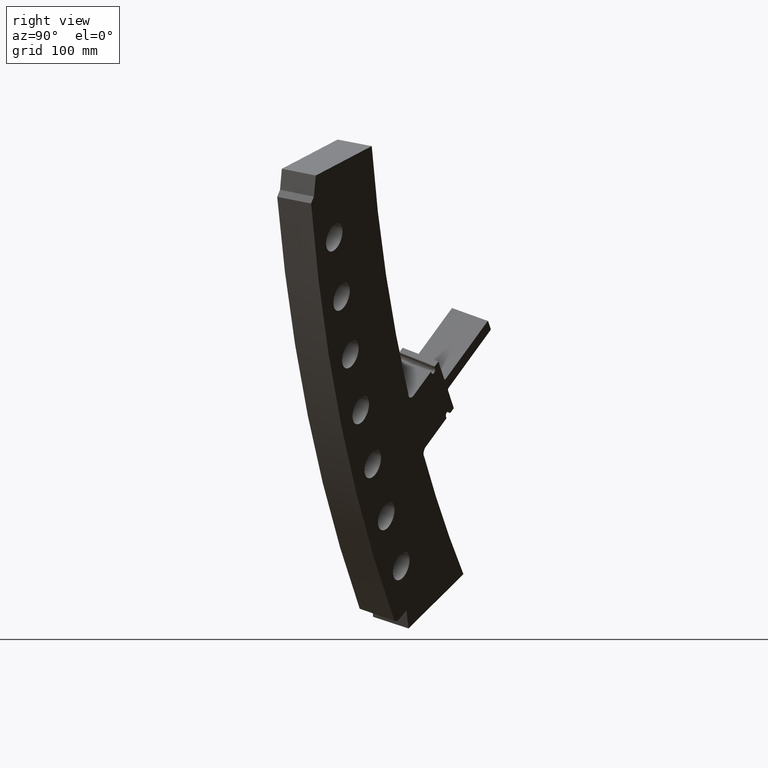
[diagram: clean part render]
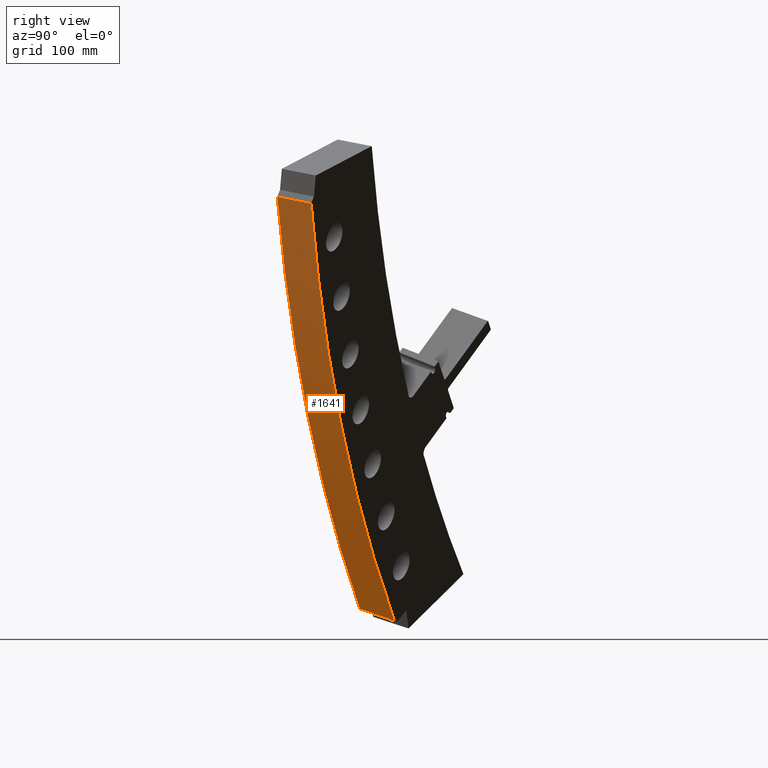
[diagram: same view with one face highlighted and labeled with its STEP entity id]
A machine part, right view. The second image highlights one B-rep face of the part: STEP entity #1641.
In plain terms, the highlighted face is a freeform B-spline surface patch.
Its self-contained STEP definition (entity closure, byte-faithful):
#269=CARTESIAN_POINT('',(2.058371674080E1,3.385014392128E1,2.178790968969E1));
#270=DIRECTION('',(4.779914505684E-1,8.338858220672E-1,-2.759684926560E-1));
#271=DIRECTION('',(6.539815257522E-1,-5.476055717032E-1,-5.219543100832E-1));
#272=AXIS2_PLACEMENT_3D('',#269,#270,#271);
#404=CARTESIAN_POINT('',(2.429558858122E1,3.302624729837E1,1.802736189174E1));
#405=DIRECTION('',(4.779914505684E-1,8.338858220672E-1,-2.759684926560E-1));
#406=DIRECTION('',(6.593845927401E-1,-5.482212820683E-1,-5.144563973210E-1));
#407=AXIS2_PLACEMENT_3D('',#404,#405,#406);
#670=DIRECTION('',(3.448536259128E-1,8.848747786795E-1,-3.131654558724E-1));
#671=VECTOR('',#670,2.148319110374E0);
#672=CARTESIAN_POINT('',(7.170366042272E1,-2.188665835778E1,-5.808799549868E1));
#673=LINE('',#672,#671);
#674=DIRECTION('',(4.720534410298E-1,8.650213749642E-1,-1.700104986966E-1));
#675=VECTOR('',#674,2.138076238117E0);
#676=CARTESIAN_POINT('',(9.252168457354E1,-2.638646896607E1,-3.562706441946E1));
#677=LINE('',#676,#675);
#915=CARTESIAN_POINT('',(9.252168457354E1,-2.638646896607E1,-3.562706441946E1));
#916=CARTESIAN_POINT('',(7.170366042272E1,-2.188665835778E1,-5.808799549868E1));
#917=VERTEX_POINT('',#915);
#918=VERTEX_POINT('',#916);
#919=CARTESIAN_POINT('',(9.353097081893E1,-2.453698731879E1,-3.599055982696E1));
#920=CARTESIAN_POINT('',(7.244451605755E1,-1.998566496046E1,-5.876077483224E1));
#921=VERTEX_POINT('',#919);
#922=VERTEX_POINT('',#920);
#1609=CARTESIAN_POINT('',(9.285673499084E1,-2.647973353276E1,
-3.511503268747E1));
#1610=CARTESIAN_POINT('',(9.321220240032E1,-2.582810625782E1,
-3.523940847368E1));
#1611=CARTESIAN_POINT('',(9.356766980980E1,-2.517647898289E1,
-3.536378425989E1));
#1612=CARTESIAN_POINT('',(9.392313721929E1,-2.452485170795E1,
-3.548816004610E1));
#1613=CARTESIAN_POINT('',(9.273610515181E1,-2.646606003543E1,
-3.528265289559E1));
#1614=CARTESIAN_POINT('',(9.309145725996E1,-2.581475591117E1,
-3.540820484440E1));
#1615=CARTESIAN_POINT('',(9.344680936811E1,-2.516345178691E1,
-3.553375679322E1));
#1616=CARTESIAN_POINT('',(9.380216147626E1,-2.451214766265E1,
-3.565930874203E1));
#1617=CARTESIAN_POINT('',(8.656449142296E1,-2.575246219916E1,
-4.381594398841E1));
#1618=CARTESIAN_POINT('',(8.691337626332E1,-2.511719535673E1,
-4.400115695321E1));
#1619=CARTESIAN_POINT('',(8.726226110367E1,-2.448192851430E1,
-4.418636991802E1));
#1620=CARTESIAN_POINT('',(8.761114594403E1,-2.384666167187E1,
-4.437158288283E1));
#1621=CARTESIAN_POINT('',(7.925453281661E1,-2.417235299763E1,
-5.170259451296E1));
#1622=CARTESIAN_POINT('',(7.956586092041E1,-2.352977411086E1,
-5.193076306583E1));
#1623=CARTESIAN_POINT('',(7.987718902420E1,-2.288719522410E1,
-5.215893161870E1));
#1624=CARTESIAN_POINT('',(8.018851712799E1,-2.224461633733E1,
-5.238710017157E1));
#1625=CARTESIAN_POINT('',(7.137436383551E1,-2.184853981967E1,
-5.832965009517E1));
#1626=CARTESIAN_POINT('',(7.163294924015E1,-2.117867035171E1,
-5.856670854166E1));
#1627=CARTESIAN_POINT('',(7.189153464479E1,-2.050880088375E1,
-5.880376698814E1));
#1628=CARTESIAN_POINT('',(7.215012004944E1,-1.983893141579E1,
-5.904082543462E1));
#1629=CARTESIAN_POINT('',(7.121958302317E1,-2.180268098852E1,
-5.845916805410E1));
#1630=CARTESIAN_POINT('',(7.147712850528E1,-2.113226894682E1,
-5.869638822025E1));
#1631=CARTESIAN_POINT('',(7.173467398739E1,-2.046185690513E1,
-5.893360838640E1));
#1632=CARTESIAN_POINT('',(7.199221946951E1,-1.979144486343E1,
-5.917082855255E1));
#1633=B_SPLINE_SURFACE_WITH_KNOTS('',3,3,((#1609,#1610,#1611,#1612),(#1613,
#1614,#1615,#1616),(#1617,#1618,#1619,#1620),(#1621,#1622,#1623,#1624),(#1625,
#1626,#1627,#1628),(#1629,#1630,#1631,#1632)),.UNSPECIFIED.,.F.,.F.,.F.,(4,1,1,
4),(4,4),(-2.E-2,0.E0,1.E0,1.02E0),(-2.772959537052E-2,1.027729595371E0),
.UNSPECIFIED.);
#1634=ORIENTED_EDGE('',*,*,#1050,.F.);
#1636=ORIENTED_EDGE('',*,*,#1635,.T.);
#1637=ORIENTED_EDGE('',*,*,#1152,.T.);
#1638=ORIENTED_EDGE('',*,*,#1602,.F.);
#1639=EDGE_LOOP('',(#1634,#1636,#1637,#1638));
#1640=FACE_OUTER_BOUND('',#1639,.F.);
#1641=ADVANCED_FACE('',(#1640),#1633,.T.);
#273=CIRCLE('',#272,1.1E2);
#408=CIRCLE('',#407,1.05E2);
#1050=EDGE_CURVE('',#917,#918,#273,.T.);
#1152=EDGE_CURVE('',#921,#922,#408,.T.);
#1602=EDGE_CURVE('',#918,#922,#673,.T.);
#1635=EDGE_CURVE('',#917,#921,#677,.T.);